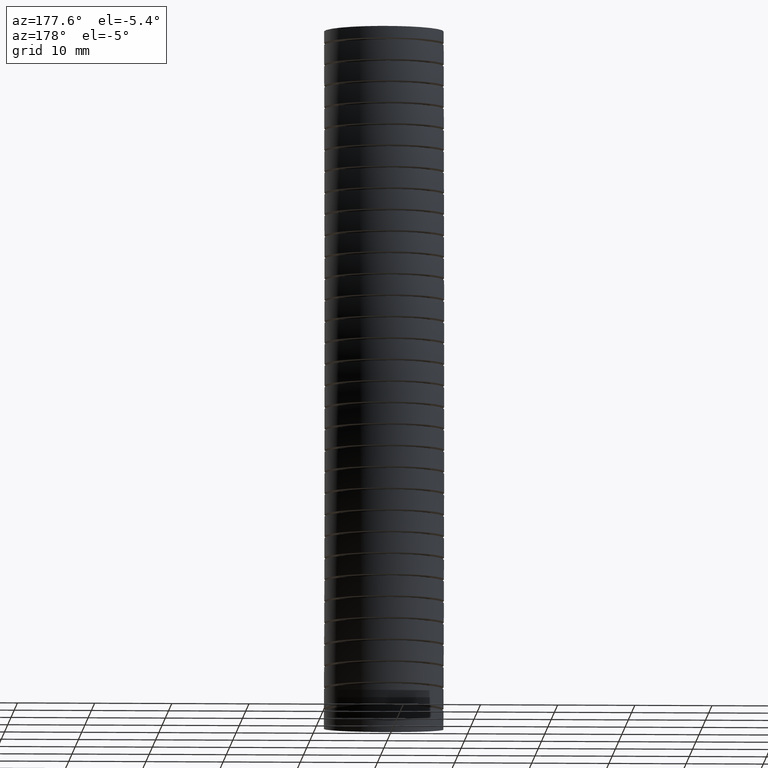
[diagram: clean part render]
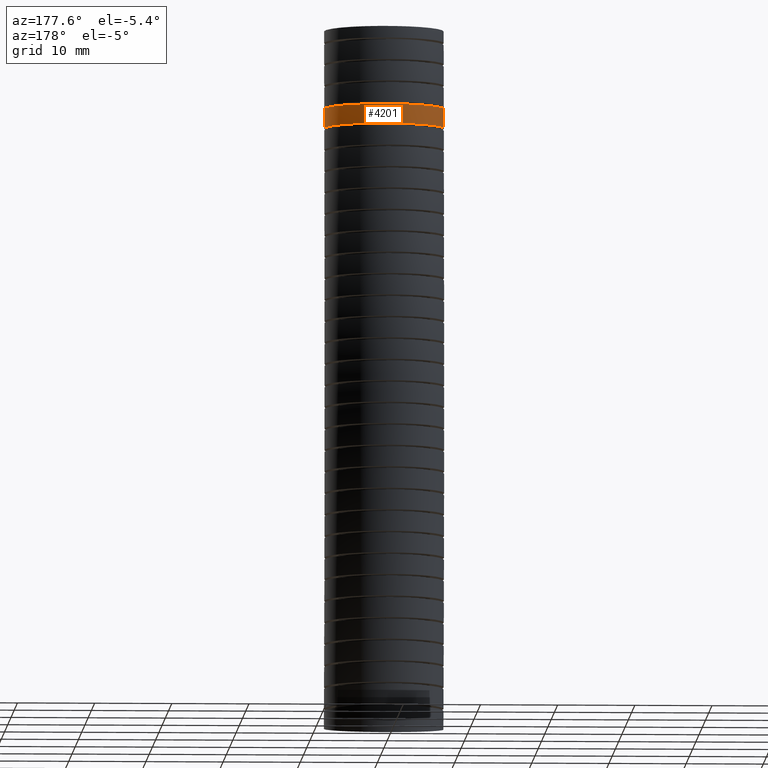
[diagram: same view with one face highlighted and labeled with its STEP entity id]
A machine part, auxiliary view. The second image highlights one B-rep face of the part: STEP entity #4201.
In plain terms, the highlighted face is a freeform B-spline surface patch.
Its self-contained STEP definition (entity closure, byte-faithful):
#1542 = B_SPLINE_CURVE_WITH_KNOTS ( 'NONE', 3,
 ( #1619, #1618, #1660, #1659 ),
 .UNSPECIFIED., .F., .F.,
 ( 4, 4 ),
 ( 0.1117067601021060500, 0.1396303112745972100 ),
 .UNSPECIFIED. ) ;
#1618 = CARTESIAN_POINT ( 'NONE',  ( 0.3050000000000000500, 0.01960595115049544200, -0.4329617554935190600 ) ) ;
#1619 = CARTESIAN_POINT ( 'NONE',  ( 0.3050000000000000500, 0.01814084832900574000, -0.3996621948285634700 ) ) ;
#1659 = CARTESIAN_POINT ( 'NONE',  ( 0.3049999999999999900, 0.02247953488524355800, -0.4995585872373665100 ) ) ;
#1660 = CARTESIAN_POINT ( 'NONE',  ( 0.3050000000000000500, 0.02105363169574103000, -0.4662606116642723000 ) ) ;
#2342 = CARTESIAN_POINT ( 'NONE',  ( -0.3050000000000000500, 0.02247953488523969000, -0.4995585872373210500 ) ) ;
#2343 = CARTESIAN_POINT ( 'NONE',  ( -0.3050000000000001000, 0.04245610668742007300, -0.4995585872373207200 ) ) ;
#2357 = CARTESIAN_POINT ( 'NONE',  ( -0.2161207858652237400, 0.2383531176624242600, -0.4995585872373213800 ) ) ;
#2358 = CARTESIAN_POINT ( 'NONE',  ( -0.2013971737257316500, 0.2517209586026437100, -0.4995585872373209400 ) ) ;
#2359 = CARTESIAN_POINT ( 'NONE',  ( -0.1859769106915936100, 0.2643961794349633500, -0.4995585872373209400 ) ) ;
#2360 = CARTESIAN_POINT ( 'NONE',  ( -0.1778707864063805400, 0.2704176138212222000, -0.4995585872373210500 ) ) ;
#2361 = CARTESIAN_POINT ( 'NONE',  ( -0.1528658832912797300, 0.2871358343104272700, -0.4995585872373209900 ) ) ;
#2362 = CARTESIAN_POINT ( 'NONE',  ( -0.1353342281504622500, 0.2965015215530958900, -0.4995585872373211100 ) ) ;
#2363 = CARTESIAN_POINT ( 'NONE',  ( -0.09858827062333437600, 0.3117575619796064100, -0.4995585872373209900 ) ) ;
#2364 = CARTESIAN_POINT ( 'NONE',  ( 0.2296602973707734000, 0.2241510063354281400, -0.4995585872373209400 ) ) ;
#2365 = CARTESIAN_POINT ( 'NONE',  ( 0.2422735214619803100, 0.2088063031127981000, -0.4995585872373209400 ) ) ;
#2366 = CARTESIAN_POINT ( 'NONE',  ( 0.2644626265132266100, 0.1756991288001845700, -0.4995585872373211600 ) ) ;
#2367 = CARTESIAN_POINT ( 'NONE',  ( 0.2740522266572952800, 0.1578014380339545200, -0.4995585872373211600 ) ) ;
#2368 = CARTESIAN_POINT ( 'NONE',  ( 0.2893125159878256500, 0.1210538823063405900, -0.4995585872373211100 ) ) ;
#2369 = CARTESIAN_POINT ( 'NONE',  ( 0.03969882388461165600, 0.3250155769421437800, -0.4995585872373206600 ) ) ;
#2370 = CARTESIAN_POINT ( 'NONE',  ( 0.04955119572447207200, 0.3235566462189997100, -0.4995585872373203800 ) ) ;
#2371 = CARTESIAN_POINT ( 'NONE',  ( 0.07878581664547697200, 0.3177631549544151500, -0.4995585872373205500 ) ) ;
#2372 = CARTESIAN_POINT ( 'NONE',  ( 0.09784874106843528800, 0.3120258206725671200, -0.4995585872373211100 ) ) ;
#2373 = CARTESIAN_POINT ( 'NONE',  ( 0.1350848995095404700, 0.2966427964433622200, -0.4995585872373209400 ) ) ;
#2374 = CARTESIAN_POINT ( 'NONE',  ( 0.1526448806476623000, 0.2872494177594986400, -0.4995585872373207200 ) ) ;
#2398 = B_SPLINE_CURVE_WITH_KNOTS ( 'NONE', 3,
 ( #2420, #2419, #2441, #2440, #2439, #2438, #2368, #2367, #2366, #2365, #2364, #2467, #2466, #2465, #2464, #2374, #2373, #2372, #2371, #2370, #2369, #2523, #2521, #2519, #2517, #2516, #2363, #2362, #2361, #2360, #2359, #2358, #2357, #2480, #2479, #2478, #2477, #2476, #2475, #2474, #2473, #2343, #2342 ),
 .UNSPECIFIED., .F., .F.,
 ( 4, 2, 2, 2, 2, 2, 2, 2, 2, 2, 2, 2, 2, 2, 2, 2, 1, 2, 2, 2, 2, 4 ),
 ( 0.0000000000000000000, 0.0007649435112942992400, 0.001529887022588598500, 0.003059774045177199100, 0.004589661067765798300, 0.006119548090354396500, 0.006884491601648695700, 0.007649435112942993900, 0.009179322135531593100, 0.01070920915812019100, 0.01147415266941449000, 0.01223909618070879000, 0.01376898320329739100, 0.01529887022588599100, 0.01682875724847459500, 0.01759370075976889400, 0.01835864427106319300, 0.01912358778235749200, 0.01988853129365179100, 0.02141841831624039000, 0.02294830533882898800, 0.02447819236141758600 ),
 .UNSPECIFIED. ) ;
#2419 = CARTESIAN_POINT ( 'NONE',  ( 0.3050000000000000500, 0.03255295553659581800, -0.4995585872373664600 ) ) ;
#2420 = CARTESIAN_POINT ( 'NONE',  ( 0.3049999999999999900, 0.02247953488524355800, -0.4995585872373665100 ) ) ;
#2438 = CARTESIAN_POINT ( 'NONE',  ( 0.2951184589287959600, 0.1020451519923191000, -0.4995585872373209400 ) ) ;
#2439 = CARTESIAN_POINT ( 'NONE',  ( 0.3010268310902784500, 0.07255726785626577500, -0.4995585872373207700 ) ) ;
#2440 = CARTESIAN_POINT ( 'NONE',  ( 0.3025202087921149400, 0.06256658056924029000, -0.4995585872373211100 ) ) ;
#2441 = CARTESIAN_POINT ( 'NONE',  ( 0.3045020574145427300, 0.04258488345155486700, -0.4995585872373211600 ) ) ;
#2464 = CARTESIAN_POINT ( 'NONE',  ( 0.1774429787285361500, 0.2707201835182622700, -0.4995585872373207200 ) ) ;
#2465 = CARTESIAN_POINT ( 'NONE',  ( 0.1854512803934970600, 0.2648004073340379800, -0.4995585872373209900 ) ) ;
#2466 = CARTESIAN_POINT ( 'NONE',  ( 0.2009407620323930000, 0.2521222424568651500, -0.4995585872373210500 ) ) ;
#2467 = CARTESIAN_POINT ( 'NONE',  ( 0.2084410246411729500, 0.2453376772887982700, -0.4995585872373208300 ) ) ;
#2473 = CARTESIAN_POINT ( 'NONE',  ( -0.3030556795719889800, 0.06222248215869993800, -0.4995585872373207200 ) ) ;
#2474 = CARTESIAN_POINT ( 'NONE',  ( -0.2953009059568715300, 0.1013372737417681800, -0.4995585872373205500 ) ) ;
#2475 = CARTESIAN_POINT ( 'NONE',  ( -0.2894115348894509300, 0.1207614646363518900, -0.4995585872373205500 ) ) ;
#2476 = CARTESIAN_POINT ( 'NONE',  ( -0.2741944522613422600, 0.1575120787014613900, -0.4995585872373205500 ) ) ;
#2477 = CARTESIAN_POINT ( 'NONE',  ( -0.2648443974956267700, 0.1750566602540137600, -0.4995585872373209400 ) ) ;
#2478 = CARTESIAN_POINT ( 'NONE',  ( -0.2481362305385752300, 0.2000936648256964600, -0.4995585872373207200 ) ) ;
#2479 = CARTESIAN_POINT ( 'NONE',  ( -0.2421273724573997900, 0.2081967054503456600, -0.4995585872373207700 ) ) ;
#2480 = CARTESIAN_POINT ( 'NONE',  ( -0.2294719274568212700, 0.2236207472192977800, -0.4995585872373207700 ) ) ;
#2516 = CARTESIAN_POINT ( 'NONE',  ( -0.07916358803818046600, 0.3176662348595284400, -0.4995585872373207700 ) ) ;
#2517 = CARTESIAN_POINT ( 'NONE',  ( -0.04007281615247193500, 0.3254566940121616500, -0.4995585872373209400 ) ) ;
#2519 = CARTESIAN_POINT ( 'NONE',  ( -0.02030751635949376900, 0.3274231464800324600, -0.4995585872373207700 ) ) ;
#2521 = CARTESIAN_POINT ( 'NONE',  ( 0.009673157056125135700, 0.3274546374184561500, -0.4995585872373209900 ) ) ;
#2523 = CARTESIAN_POINT ( 'NONE',  ( 0.01977413738002472100, 0.3269672429782121700, -0.4995585872373205500 ) ) ;
#3164 = EDGE_CURVE ( 'NONE', #3917, #3166, #5789, .T. ) ;
#3166 = VERTEX_POINT ( 'NONE', #5791 ) ;
#3183 = VERTEX_POINT ( 'NONE', #5988 ) ;
#3916 = VERTEX_POINT ( 'NONE', #15037 ) ;
#3917 = VERTEX_POINT ( 'NONE', #15035 ) ;
#4015 = EDGE_CURVE ( 'NONE', #3916, #3183, #1542, .T. ) ;
#4063 = ORIENTED_EDGE ( 'NONE', *, *, #4064, .T. ) ;
#4064 = EDGE_CURVE ( 'NONE', #3183, #3166, #2398, .T. ) ;
#4127 = ORIENTED_EDGE ( 'NONE', *, *, #4128, .T. ) ;
#4128 = EDGE_CURVE ( 'NONE', #3917, #3916, #8752, .T. ) ;
#4129 = ORIENTED_EDGE ( 'NONE', *, *, #4015, .T. ) ;
#4201 = ADVANCED_FACE ( 'NONE', ( #9766 ), #9593, .T. ) ;
#4202 = EDGE_LOOP ( 'NONE', ( #4203, #4127, #4129, #4063 ) ) ;
#4203 = ORIENTED_EDGE ( 'NONE', *, *, #3164, .F. ) ;
#5782 = CARTESIAN_POINT ( 'NONE',  ( -0.3050000000000000500, 0.02247953488523969000, -0.4995585872373210500 ) ) ;
#5783 = CARTESIAN_POINT ( 'NONE',  ( -0.3050000000000000500, 0.02105363169573924000, -0.4662606116642301600 ) ) ;
#5784 = CARTESIAN_POINT ( 'NONE',  ( -0.3050000000000000500, 0.01960595115049378400, -0.4329617554934802600 ) ) ;
#5785 = CARTESIAN_POINT ( 'NONE',  ( -0.3050000000000000500, 0.01814084832900268000, -0.3996621948285281100 ) ) ;
#5789 = B_SPLINE_CURVE_WITH_KNOTS ( 'NONE', 3,
 ( #5785, #5784, #5783, #5782 ),
 .UNSPECIFIED., .F., .F.,
 ( 4, 4 ),
 ( 0.1117067601020961300, 0.1396303112745845000 ),
 .UNSPECIFIED. ) ;
#5791 = CARTESIAN_POINT ( 'NONE',  ( -0.3050000000000000500, 0.02247953488523969000, -0.4995585872373210500 ) ) ;
#5988 = CARTESIAN_POINT ( 'NONE',  ( 0.3049999999999999900, 0.02247953488524355800, -0.4995585872373665100 ) ) ;
#8732 = CARTESIAN_POINT ( 'NONE',  ( -0.2737802896702309400, 0.1529207805663289600, -0.3996621948285283800 ) ) ;
#8733 = CARTESIAN_POINT ( 'NONE',  ( -0.2822666873926894000, 0.1349465800188574800, -0.3996621948285280500 ) ) ;
#8734 = CARTESIAN_POINT ( 'NONE',  ( -0.2424889265833001800, 0.2042095594978602100, -0.3996621948285284400 ) ) ;
#8735 = CARTESIAN_POINT ( 'NONE',  ( -0.2592205374677005200, 0.1791566515421932300, -0.3996621948285284400 ) ) ;
#8736 = CARTESIAN_POINT ( 'NONE',  ( -0.2643920836830059300, 0.1705128653996732200, -0.3996621948285284900 ) ) ;
#8737 = CARTESIAN_POINT ( 'NONE',  ( -0.3050000000000000500, 0.01814084832900268000, -0.3996621948285281100 ) ) ;
#8740 = CARTESIAN_POINT ( 'NONE',  ( 0.3050000000000000500, 0.01814084832900574000, -0.3996621948285634700 ) ) ;
#8741 = CARTESIAN_POINT ( 'NONE',  ( 0.3050000000000001000, 0.03828751769672452500, -0.3996621948285635200 ) ) ;
#8742 = CARTESIAN_POINT ( 'NONE',  ( 0.3030228742282344300, 0.05822527466582501400, -0.3996621948285284900 ) ) ;
#8743 = CARTESIAN_POINT ( 'NONE',  ( 0.2951297977522212600, 0.09768460244672311200, -0.3996621948285284400 ) ) ;
#8744 = CARTESIAN_POINT ( 'NONE',  ( -0.3050000000000000500, 0.03804156266866023900, -0.3996621948285282200 ) ) ;
#8745 = CARTESIAN_POINT ( 'NONE',  ( -0.09824987177221017300, 0.3070319623735004400, -0.3996621948285281100 ) ) ;
#8746 = CARTESIAN_POINT ( 'NONE',  ( -0.1077568852315310300, 0.3036212491731457600, -0.3996621948285281600 ) ) ;
#8747 = CARTESIAN_POINT ( 'NONE',  ( -0.1354131931540915000, 0.2921370207871433200, -0.3996621948285281600 ) ) ;
#8748 = CARTESIAN_POINT ( 'NONE',  ( -0.1529231974942932300, 0.2827639728009871400, -0.3996621948285283300 ) ) ;
#8749 = CARTESIAN_POINT ( 'NONE',  ( -0.1778000424789142100, 0.2661348692594003300, -0.3996621948285281600 ) ) ;
#8750 = CARTESIAN_POINT ( 'NONE',  ( -0.2889707905902361200, 0.1162171826387783500, -0.3996621948285281100 ) ) ;
#8751 = CARTESIAN_POINT ( 'NONE',  ( -0.2947685998957063100, 0.09710376888702666700, -0.3996621948285281600 ) ) ;
#8752 = B_SPLINE_CURVE_WITH_KNOTS ( 'NONE', 3,
 ( #8737, #8744, #8754, #8753, #8751, #8750, #8733, #8732, #8736, #8735, #8734, #8781, #8780, #8779, #8778, #8749, #8748, #8747, #8746, #8745, #8759, #8758, #8757, #8756, #8755, #8766, #8765, #8764, #8763, #8762, #8761, #8760, #8776, #8775, #8774, #8773, #8772, #8771, #8770, #8769, #8768, #8743, #8742, #8741, #8740 ),
 .UNSPECIFIED., .F., .F.,
 ( 4, 2, 2, 1, 2, 2, 2, 2, 2, 2, 2, 2, 2, 2, 2, 2, 2, 2, 2, 2, 2, 2, 4 ),
 ( 0.02421962643794001900, 0.02573301233946200300, 0.02648970529022299400, 0.02724639824098398400, 0.02800309119174497500, 0.02875978414250596900, 0.03027317004402795300, 0.03102986299478894700, 0.03178655594554993800, 0.03329994184707192600, 0.03405663479783291300, 0.03481332774859390700, 0.03632671365011589500, 0.03784009955163787600, 0.03859679250239887000, 0.03935348545315985700, 0.04086687135468185200, 0.04238025725620384000, 0.04389364315772582800, 0.04465033610848681600, 0.04540702905924781700, 0.04692041496076979800, 0.04843380086229178600 ),
 .UNSPECIFIED. ) ;
#8753 = CARTESIAN_POINT ( 'NONE',  ( -0.2972232043680322300, 0.08729947576432446600, -0.3996621948285281600 ) ) ;
#8754 = CARTESIAN_POINT ( 'NONE',  ( -0.3030706541952134500, 0.05781975208029894300, -0.3996621948285280500 ) ) ;
#8755 = CARTESIAN_POINT ( 'NONE',  ( 0.01985220427339292100, 0.3231313834491877400, -0.3996621948285283800 ) ) ;
#8756 = CARTESIAN_POINT ( 'NONE',  ( -0.02036465764068046800, 0.3230976006392452000, -0.3996621948285284400 ) ) ;
#8757 = CARTESIAN_POINT ( 'NONE',  ( -0.04015945623068260800, 0.3211119062909043600, -0.3996621948285281600 ) ) ;
#8758 = CARTESIAN_POINT ( 'NONE',  ( -0.06939734917786705100, 0.3152815006345202100, -0.3996621948285283300 ) ) ;
#8759 = CARTESIAN_POINT ( 'NONE',  ( -0.07906704199598614500, 0.3128592436511850000, -0.3996621948285281100 ) ) ;
#8760 = CARTESIAN_POINT ( 'NONE',  ( 0.1525697817833844800, 0.2829650141010098300, -0.3996621948285280500 ) ) ;
#8761 = CARTESIAN_POINT ( 'NONE',  ( 0.1350441132237711100, 0.2923228851810030200, -0.3996621948285281100 ) ) ;
#8762 = CARTESIAN_POINT ( 'NONE',  ( 0.1072981030850004000, 0.3037948814243313100, -0.3996621948285281600 ) ) ;
#8763 = CARTESIAN_POINT ( 'NONE',  ( 0.09777249441752132500, 0.3071928430380965700, -0.3996621948285282200 ) ) ;
#8764 = CARTESIAN_POINT ( 'NONE',  ( 0.07863616667801387500, 0.3129734967801677300, -0.3996621948285283300 ) ) ;
#8765 = CARTESIAN_POINT ( 'NONE',  ( 0.06897998638383948100, 0.3153784418673275000, -0.3996621948285287200 ) ) ;
#8766 = CARTESIAN_POINT ( 'NONE',  ( 0.03975240556735271100, 0.3211647566444986200, -0.3996621948285286600 ) ) ;
#8768 = CARTESIAN_POINT ( 'NONE',  ( 0.2892812584072183600, 0.1168031814964742400, -0.3996621948285283800 ) ) ;
#8769 = CARTESIAN_POINT ( 'NONE',  ( 0.2778497222536644400, 0.1443170154616067500, -0.3996621948285283300 ) ) ;
#8770 = CARTESIAN_POINT ( 'NONE',  ( 0.2735895938345299600, 0.1533091048497405000, -0.3996621948285280500 ) ) ;
#8771 = CARTESIAN_POINT ( 'NONE',  ( 0.2641531530015598900, 0.1709281507276563800, -0.3996621948285282200 ) ) ;
#8772 = CARTESIAN_POINT ( 'NONE',  ( 0.2589453461448220600, 0.1795967694072474200, -0.3996621948285287200 ) ) ;
#8773 = CARTESIAN_POINT ( 'NONE',  ( 0.2422274664892830300, 0.2045428306747341900, -0.3996621948285284900 ) ) ;
#8774 = CARTESIAN_POINT ( 'NONE',  ( 0.2295982564790153000, 0.2198807990886445200, -0.3996621948285281600 ) ) ;
#8775 = CARTESIAN_POINT ( 'NONE',  ( 0.2014212335535888200, 0.2480142145876944000, -0.3996621948285283300 ) ) ;
#8776 = CARTESIAN_POINT ( 'NONE',  ( 0.1857081872600781800, 0.2608830404794053600, -0.3996621948285281600 ) ) ;
#8778 = CARTESIAN_POINT ( 'NONE',  ( -0.1858992328328304700, 0.2601265792648294100, -0.3996621948285279400 ) ) ;
#8779 = CARTESIAN_POINT ( 'NONE',  ( -0.2014058802633984000, 0.2473837817224890100, -0.3996621948285280500 ) ) ;
#8780 = CARTESIAN_POINT ( 'NONE',  ( -0.2087898784959190100, 0.2406764153489813500, -0.3996621948285278300 ) ) ;
#8781 = CARTESIAN_POINT ( 'NONE',  ( -0.2298647817846304100, 0.2195745088904400600, -0.3996621948285277700 ) ) ;
#9593 =( BOUNDED_SURFACE ( )  B_SPLINE_SURFACE ( 3, 3, ( 
 ( #9710, #9709, #9708, #9707, #9706, #9705 ),
 ( #9704, #9703, #9702, #9701, #9700, #9699 ),
 ( #9698, #9697, #9696, #9695, #9694, #9693 ),
 ( #9692, #9691, #9690, #9689, #9688, #9687 ),
 ( #9686, #9685, #9684, #9728, #9727, #9726 ),
 ( #9725, #9724, #9723, #9722, #9721, #9720 ),
 ( #9719, #9718, #9717, #9716, #9715, #9714 ) ),
 .UNSPECIFIED., .F., .F., .F. ) 
 B_SPLINE_SURFACE_WITH_KNOTS ( ( 4, 3, 4 ),
 ( 4, 1, 1, 4 ),
 ( 0.0000000000000000000, 0.5000000000000000000, 1.000000000000000000 ),
 ( 0.0000000000000000000, 0.5599999999999999400, 0.8398242262648183400, 1.000000000000000000 ),
 .UNSPECIFIED. ) 
 GEOMETRIC_REPRESENTATION_ITEM ( )  RATIONAL_B_SPLINE_SURFACE ( (
 ( 1.000000000000000000, 1.000000000000000000, 1.000000000000000200, 1.000000000000000000, 1.000000000000000000, 1.000000000000000000),
 ( 0.3333333333333333100, 0.3333333333333333100, 0.3333333333333333100, 0.3333333333333333100, 0.3333333333333333100, 0.3333333333333333100),
 ( 0.3333333333333333100, 0.3333333333333333100, 0.3333333333333333100, 0.3333333333333333100, 0.3333333333333333100, 0.3333333333333333100),
 ( 1.000000000000000000, 1.000000000000000000, 1.000000000000000200, 1.000000000000000000, 1.000000000000000000, 1.000000000000000000),
 ( 0.3333333333333333100, 0.3333333333333333100, 0.3333333333333333100, 0.3333333333333333100, 0.3333333333333333100, 0.3333333333333333100),
 ( 0.3333333333333333100, 0.3333333333333333100, 0.3333333333333333100, 0.3333333333333333100, 0.3333333333333333100, 0.3333333333333333100),
 ( 1.000000000000000000, 1.000000000000000000, 1.000000000000000200, 1.000000000000000000, 1.000000000000000000, 1.000000000000000000) ) ) 
 REPRESENTATION_ITEM ( '' )  SURFACE ( )  );
#9684 = CARTESIAN_POINT ( 'NONE',  ( -0.3049999999999999400, 0.6875905811525234700, -1.687708987936889400 ) ) ;
#9685 = CARTESIAN_POINT ( 'NONE',  ( -0.3049999999999999400, 0.6410401296320996600, -0.6751683643642422100 ) ) ;
#9686 = CARTESIAN_POINT ( 'NONE',  ( -0.3049999999999999400, 0.6100000000000001000, 0.0000000000000000000 ) ) ;
#9687 = CARTESIAN_POINT ( 'NONE',  ( -0.3049999999999999900, -0.02999999999999996100, -3.569999999999999400 ) ) ;
#9688 = CARTESIAN_POINT ( 'NONE',  ( -0.3049999999999999400, -0.01189670328115248300, -3.380058092153300100 ) ) ;
#9689 = CARTESIAN_POINT ( 'NONE',  ( -0.3049999999999999900, 0.03783273064349428100, -2.858291051460112500 ) ) ;
#9690 = CARTESIAN_POINT ( 'NONE',  ( -0.3049999999999999900, 0.07694042471324441500, -1.669468061939300500 ) ) ;
#9691 = CARTESIAN_POINT ( 'NONE',  ( -0.3050000000000000500, 0.03078003440073754200, -0.6678710777714059700 ) ) ;
#9692 = CARTESIAN_POINT ( 'NONE',  ( -0.3050000000000000500, 3.735172737399427600E-017, 0.0000000000000000000 ) ) ;
#9693 = CARTESIAN_POINT ( 'NONE',  ( -0.3050000000000000500, -0.6339397472009050700, -3.484228316147418800 ) ) ;
#9694 = CARTESIAN_POINT ( 'NONE',  ( -0.3050000000000000500, -0.6165911457587421900, -3.301565899820480900 ) ) ;
#9695 = CARTESIAN_POINT ( 'NONE',  ( -0.3050000000000000500, -0.5689348463287677800, -2.799795492787948300 ) ) ;
#9696 = CARTESIAN_POINT ( 'NONE',  ( -0.3050000000000001000, -0.5337097317260344200, -1.651227135941712300 ) ) ;
#9697 = CARTESIAN_POINT ( 'NONE',  ( -0.3050000000000001600, -0.5794800608306244200, -0.6605737911785694000 ) ) ;
#9698 = CARTESIAN_POINT ( 'NONE',  ( -0.3050000000000001000, -0.6100000000000001000, 0.0000000000000000000 ) ) ;
#9699 = CARTESIAN_POINT ( 'NONE',  ( 0.3049999999999999400, -0.6339397472009050700, -3.484228316147418800 ) ) ;
#9700 = CARTESIAN_POINT ( 'NONE',  ( 0.3049999999999999400, -0.6165911457587421900, -3.301565899820480900 ) ) ;
#9701 = CARTESIAN_POINT ( 'NONE',  ( 0.3049999999999999400, -0.5689348463287677800, -2.799795492787948300 ) ) ;
#9702 = CARTESIAN_POINT ( 'NONE',  ( 0.3050000000000000500, -0.5337097317260344200, -1.651227135941712300 ) ) ;
#9703 = CARTESIAN_POINT ( 'NONE',  ( 0.3050000000000000500, -0.5794800608306244200, -0.6605737911785694000 ) ) ;
#9704 = CARTESIAN_POINT ( 'NONE',  ( 0.3050000000000000500, -0.6100000000000001000, 0.0000000000000000000 ) ) ;
#9705 = CARTESIAN_POINT ( 'NONE',  ( 0.3049999999999999900, -0.02999999999999999900, -3.569999999999999400 ) ) ;
#9706 = CARTESIAN_POINT ( 'NONE',  ( 0.3049999999999999400, -0.01189670328115252300, -3.380058092153300100 ) ) ;
#9707 = CARTESIAN_POINT ( 'NONE',  ( 0.3049999999999999900, 0.03783273064349424600, -2.858291051460112500 ) ) ;
#9708 = CARTESIAN_POINT ( 'NONE',  ( 0.3049999999999999900, 0.07694042471324438700, -1.669468061939300500 ) ) ;
#9709 = CARTESIAN_POINT ( 'NONE',  ( 0.3050000000000000500, 0.03078003440073750300, -0.6678710777714059700 ) ) ;
#9710 = CARTESIAN_POINT ( 'NONE',  ( 0.3050000000000000500, 0.0000000000000000000, 0.0000000000000000000 ) ) ;
#9714 = CARTESIAN_POINT ( 'NONE',  ( 0.3049999999999999900, -0.02999999999999999900, -3.569999999999999400 ) ) ;
#9715 = CARTESIAN_POINT ( 'NONE',  ( 0.3049999999999999400, -0.01189670328115252300, -3.380058092153300100 ) ) ;
#9716 = CARTESIAN_POINT ( 'NONE',  ( 0.3049999999999999900, 0.03783273064349424600, -2.858291051460112500 ) ) ;
#9717 = CARTESIAN_POINT ( 'NONE',  ( 0.3049999999999999900, 0.07694042471324438700, -1.669468061939300500 ) ) ;
#9718 = CARTESIAN_POINT ( 'NONE',  ( 0.3050000000000000500, 0.03078003440073750300, -0.6678710777714059700 ) ) ;
#9719 = CARTESIAN_POINT ( 'NONE',  ( 0.3050000000000000500, 0.0000000000000000000, 0.0000000000000000000 ) ) ;
#9720 = CARTESIAN_POINT ( 'NONE',  ( 0.3049999999999999400, 0.5739397472009051300, -3.655771683852579600 ) ) ;
#9721 = CARTESIAN_POINT ( 'NONE',  ( 0.3049999999999999400, 0.5927977391964371900, -3.458550284486119800 ) ) ;
#9722 = CARTESIAN_POINT ( 'NONE',  ( 0.3049999999999999400, 0.6446003076157559300, -2.916786610132277200 ) ) ;
#9723 = CARTESIAN_POINT ( 'NONE',  ( 0.3050000000000000500, 0.6875905811525232500, -1.687708987936889400 ) ) ;
#9724 = CARTESIAN_POINT ( 'NONE',  ( 0.3050000000000000500, 0.6410401296320993300, -0.6751683643642422100 ) ) ;
#9725 = CARTESIAN_POINT ( 'NONE',  ( 0.3050000000000000500, 0.6100000000000001000, 0.0000000000000000000 ) ) ;
#9726 = CARTESIAN_POINT ( 'NONE',  ( -0.3049999999999998800, 0.5739397472009051300, -3.655771683852579600 ) ) ;
#9727 = CARTESIAN_POINT ( 'NONE',  ( -0.3049999999999998800, 0.5927977391964373000, -3.458550284486119800 ) ) ;
#9728 = CARTESIAN_POINT ( 'NONE',  ( -0.3049999999999999400, 0.6446003076157562600, -2.916786610132277200 ) ) ;
#9766 = FACE_OUTER_BOUND ( 'NONE', #4202, .T. ) ;
#15035 = CARTESIAN_POINT ( 'NONE',  ( -0.3050000000000000500, 0.01814084832900268000, -0.3996621948285281100 ) ) ;
#15037 = CARTESIAN_POINT ( 'NONE',  ( 0.3050000000000000500, 0.01814084832900574000, -0.3996621948285634700 ) ) ;